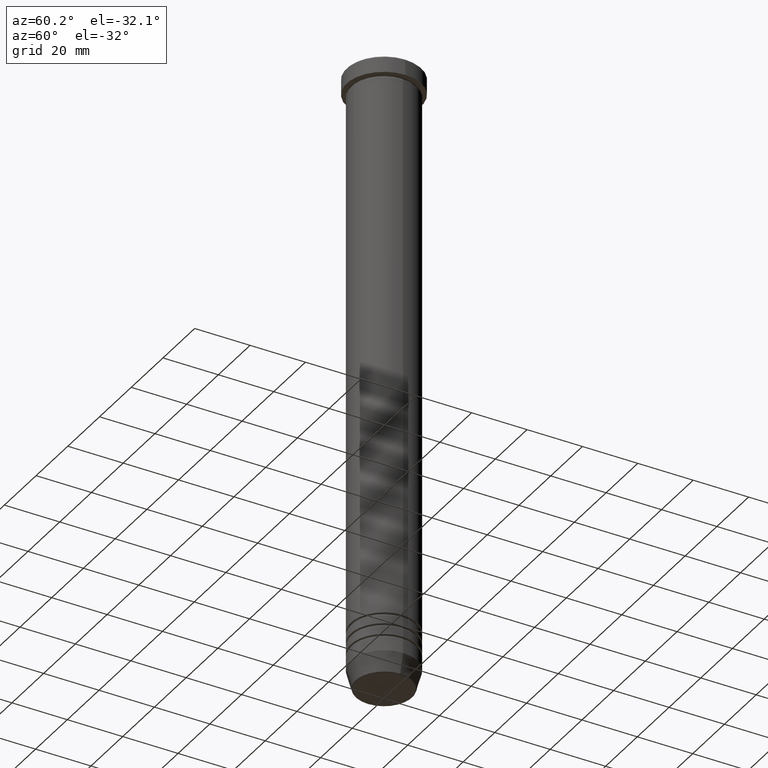
[diagram: clean part render]
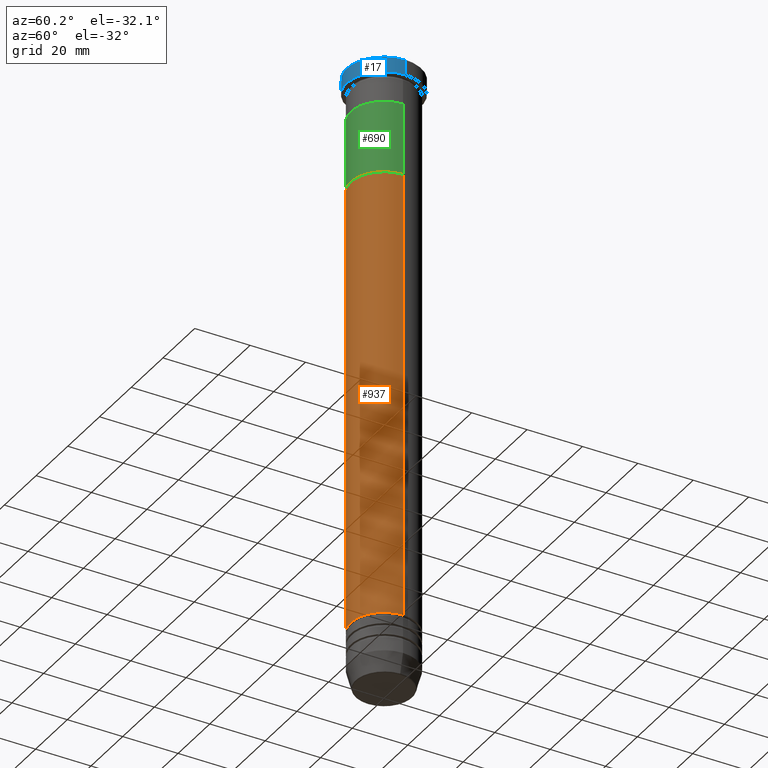
[diagram: same view with three faces highlighted in distinct colors, each labeled with its STEP entity id]
A machine part, auxiliary view with three faces highlighted in distinct colors.
Their STEP definitions:

[orange] entity #937 — the highlighted cylindrical surface (partial cylindrical patch) has radius 12 mm, axis along (-0, -0, 1).
#29 = CARTESIAN_POINT ( 'NONE',  ( -12.00000000000000178, 1.469576158976824144E-15, -41.99999999999999289 ) ) ;
#83 = AXIS2_PLACEMENT_3D ( 'NONE', #355, #528, #96 ) ;
#96 = DIRECTION ( 'NONE',  ( 1.000000000000000000, 0.000000000000000000, 0.000000000000000000 ) ) ;
#104 = EDGE_CURVE ( 'NONE', #334, #419, #735, .T. ) ;
#125 = CIRCLE ( 'NONE', #228, 12.00000000000000178 ) ;
#163 = DIRECTION ( 'NONE',  ( -0.000000000000000000, -0.000000000000000000, 1.000000000000000000 ) ) ;
#228 = AXIS2_PLACEMENT_3D ( 'NONE', #850, #951, #1143 ) ;
#237 = DIRECTION ( 'NONE',  ( 1.000000000000000000, 0.000000000000000000, 0.000000000000000000 ) ) ;
#309 = CARTESIAN_POINT ( 'NONE',  ( 11.99999999999999822, 0.000000000000000000, 0.000000000000000000 ) ) ;
#320 = LINE ( 'NONE', #1045, #748 ) ;
#324 = ORIENTED_EDGE ( 'NONE', *, *, #1068, .F. ) ;
#334 = VERTEX_POINT ( 'NONE', #791 ) ;
#345 = CARTESIAN_POINT ( 'NONE',  ( -11.99999999999999467, 1.469576158976823553E-15, -205.0000000000000000 ) ) ;
#355 = CARTESIAN_POINT ( 'NONE',  ( 0.000000000000000000, 0.000000000000000000, -205.0000000000000000 ) ) ;
#411 = CARTESIAN_POINT ( 'NONE',  ( 0.000000000000000000, 0.000000000000000000, 0.000000000000000000 ) ) ;
#419 = VERTEX_POINT ( 'NONE', #1112 ) ;
#445 = ORIENTED_EDGE ( 'NONE', *, *, #804, .T. ) ;
#515 = FACE_OUTER_BOUND ( 'NONE', #1142, .T. ) ;
#528 = DIRECTION ( 'NONE',  ( -0.000000000000000000, -0.000000000000000000, 1.000000000000000000 ) ) ;
#587 = ORIENTED_EDGE ( 'NONE', *, *, #104, .T. ) ;
#710 = VECTOR ( 'NONE', #1093, 1000.000000000000000 ) ;
#727 = VERTEX_POINT ( 'NONE', #29 ) ;
#735 = LINE ( 'NONE', #309, #710 ) ;
#748 = VECTOR ( 'NONE', #163, 1000.000000000000000 ) ;
#777 = DIRECTION ( 'NONE',  ( -0.000000000000000000, -0.000000000000000000, 1.000000000000000000 ) ) ;
#791 = CARTESIAN_POINT ( 'NONE',  ( 11.99999999999999467, 0.000000000000000000, -205.0000000000000000 ) ) ;
#795 = ORIENTED_EDGE ( 'NONE', *, *, #898, .F. ) ;
#804 = EDGE_CURVE ( 'NONE', #879, #334, #989, .T. ) ;
#850 = CARTESIAN_POINT ( 'NONE',  ( 0.000000000000000000, 0.000000000000000000, -41.99999999999999289 ) ) ;
#879 = VERTEX_POINT ( 'NONE', #345 ) ;
#898 = EDGE_CURVE ( 'NONE', #879, #727, #320, .T. ) ;
#937 = ADVANCED_FACE ( 'NONE', ( #515 ), #1044, .T. ) ;
#951 = DIRECTION ( 'NONE',  ( -0.000000000000000000, -0.000000000000000000, 1.000000000000000000 ) ) ;
#989 = CIRCLE ( 'NONE', #83, 11.99999999999999467 ) ;
#1001 = AXIS2_PLACEMENT_3D ( 'NONE', #411, #777, #237 ) ;
#1044 = CYLINDRICAL_SURFACE ( 'NONE', #1001, 11.99999999999999822 ) ;
#1045 = CARTESIAN_POINT ( 'NONE',  ( -11.99999999999999822, 1.469576158976823750E-15, 0.000000000000000000 ) ) ;
#1068 = EDGE_CURVE ( 'NONE', #727, #419, #125, .T. ) ;
#1093 = DIRECTION ( 'NONE',  ( -0.000000000000000000, -0.000000000000000000, 1.000000000000000000 ) ) ;
#1112 = CARTESIAN_POINT ( 'NONE',  ( 12.00000000000000178, 0.000000000000000000, -41.99999999999999289 ) ) ;
#1142 = EDGE_LOOP ( 'NONE', ( #795, #445, #587, #324 ) ) ;
#1143 = DIRECTION ( 'NONE',  ( 1.000000000000000000, 0.000000000000000000, 0.000000000000000000 ) ) ;

[blue] entity #17 — the highlighted cylindrical surface (partial cylindrical patch) has radius 13.5 mm, axis along (-0, -0, 1).
#3 = VERTEX_POINT ( 'NONE', #540 ) ;
#12 = AXIS2_PLACEMENT_3D ( 'NONE', #942, #597, #319 ) ;
#16 = CARTESIAN_POINT ( 'NONE',  ( 13.50000000000000000, 0.000000000000000000, -0.5000000000000056621 ) ) ;
#17 = ADVANCED_FACE ( 'NONE', ( #356 ), #189, .T. ) ;
#98 = DIRECTION ( 'NONE',  ( 1.000000000000000000, 0.000000000000000000, 0.000000000000000000 ) ) ;
#150 = DIRECTION ( 'NONE',  ( 1.000000000000000000, 0.000000000000000000, 0.000000000000000000 ) ) ;
#189 = CYLINDRICAL_SURFACE ( 'NONE', #462, 13.50000000000000000 ) ;
#222 = VERTEX_POINT ( 'NONE', #545 ) ;
#264 = DIRECTION ( 'NONE',  ( -0.000000000000000000, -0.000000000000000000, 1.000000000000000000 ) ) ;
#279 = DIRECTION ( 'NONE',  ( -0.000000000000000000, -0.000000000000000000, 1.000000000000000000 ) ) ;
#283 = VERTEX_POINT ( 'NONE', #16 ) ;
#298 = CARTESIAN_POINT ( 'NONE',  ( -13.50000000000000000, 1.653273178848926867E-15, -6.000000000000000000 ) ) ;
#319 = DIRECTION ( 'NONE',  ( 1.000000000000000000, 0.000000000000000000, 0.000000000000000000 ) ) ;
#354 = DIRECTION ( 'NONE',  ( -0.000000000000000000, -0.000000000000000000, 1.000000000000000000 ) ) ;
#356 = FACE_OUTER_BOUND ( 'NONE', #689, .T. ) ;
#364 = EDGE_CURVE ( 'NONE', #410, #222, #1082, .T. ) ;
#386 = CIRCLE ( 'NONE', #12, 13.50000000000000000 ) ;
#410 = VERTEX_POINT ( 'NONE', #298 ) ;
#448 = AXIS2_PLACEMENT_3D ( 'NONE', #672, #581, #150 ) ;
#462 = AXIS2_PLACEMENT_3D ( 'NONE', #1083, #354, #98 ) ;
#520 = LINE ( 'NONE', #955, #1024 ) ;
#540 = CARTESIAN_POINT ( 'NONE',  ( 13.50000000000000000, 0.000000000000000000, -6.000000000000000000 ) ) ;
#543 = CARTESIAN_POINT ( 'NONE',  ( -13.50000000000000000, 1.653273178848926867E-15, 0.000000000000000000 ) ) ;
#545 = CARTESIAN_POINT ( 'NONE',  ( -13.50000000000000000, 1.653273178848926867E-15, -0.5000000000000056621 ) ) ;
#581 = DIRECTION ( 'NONE',  ( -0.000000000000000000, -0.000000000000000000, 1.000000000000000000 ) ) ;
#597 = DIRECTION ( 'NONE',  ( 0.000000000000000000, 0.000000000000000000, -1.000000000000000000 ) ) ;
#620 = EDGE_CURVE ( 'NONE', #410, #3, #870, .T. ) ;
#672 = CARTESIAN_POINT ( 'NONE',  ( 0.000000000000000000, 0.000000000000000000, -6.000000000000000000 ) ) ;
#689 = EDGE_LOOP ( 'NONE', ( #1106, #954, #760, #997 ) ) ;
#701 = EDGE_CURVE ( 'NONE', #3, #283, #520, .T. ) ;
#760 = ORIENTED_EDGE ( 'NONE', *, *, #701, .T. ) ;
#785 = VECTOR ( 'NONE', #279, 1000.000000000000000 ) ;
#870 = CIRCLE ( 'NONE', #448, 13.50000000000000000 ) ;
#942 = CARTESIAN_POINT ( 'NONE',  ( 0.000000000000000000, 0.000000000000000000, -0.5000000000000056621 ) ) ;
#954 = ORIENTED_EDGE ( 'NONE', *, *, #620, .T. ) ;
#955 = CARTESIAN_POINT ( 'NONE',  ( 13.50000000000000000, 0.000000000000000000, 0.000000000000000000 ) ) ;
#967 = EDGE_CURVE ( 'NONE', #283, #222, #386, .T. ) ;
#997 = ORIENTED_EDGE ( 'NONE', *, *, #967, .T. ) ;
#1024 = VECTOR ( 'NONE', #264, 1000.000000000000000 ) ;
#1082 = LINE ( 'NONE', #543, #785 ) ;
#1083 = CARTESIAN_POINT ( 'NONE',  ( 0.000000000000000000, 0.000000000000000000, 0.000000000000000000 ) ) ;
#1106 = ORIENTED_EDGE ( 'NONE', *, *, #364, .F. ) ;

[green] entity #690 — the highlighted cylindrical surface (partial cylindrical patch) has radius 12 mm, axis along (-0, -0, 1).
#80 = CARTESIAN_POINT ( 'NONE',  ( 0.000000000000000000, 0.000000000000000000, -41.99999999999999289 ) ) ;
#91 = ORIENTED_EDGE ( 'NONE', *, *, #305, .F. ) ;
#97 = CARTESIAN_POINT ( 'NONE',  ( -12.00000000000000178, 1.469576158976823947E-15, -41.99999999999999289 ) ) ;
#143 = EDGE_CURVE ( 'NONE', #1132, #806, #971, .T. ) ;
#187 = CARTESIAN_POINT ( 'NONE',  ( -12.00000000000000178, 1.469576158976823947E-15, -16.00000000000000000 ) ) ;
#216 = CIRCLE ( 'NONE', #871, 12.00000000000000178 ) ;
#274 = AXIS2_PLACEMENT_3D ( 'NONE', #80, #763, #592 ) ;
#305 = EDGE_CURVE ( 'NONE', #806, #414, #539, .T. ) ;
#307 = VECTOR ( 'NONE', #457, 1000.000000000000000 ) ;
#311 = FACE_OUTER_BOUND ( 'NONE', #315, .T. ) ;
#315 = EDGE_LOOP ( 'NONE', ( #91, #607, #554, #591 ) ) ;
#362 = DIRECTION ( 'NONE',  ( 0.000000000000000000, 0.000000000000000000, -1.000000000000000000 ) ) ;
#378 = EDGE_CURVE ( 'NONE', #1132, #964, #704, .T. ) ;
#407 = DIRECTION ( 'NONE',  ( -1.000000000000000000, 0.000000000000000000, 0.000000000000000000 ) ) ;
#414 = VERTEX_POINT ( 'NONE', #187 ) ;
#457 = DIRECTION ( 'NONE',  ( -0.000000000000000000, -0.000000000000000000, 1.000000000000000000 ) ) ;
#465 = DIRECTION ( 'NONE',  ( -1.000000000000000000, 0.000000000000000000, 0.000000000000000000 ) ) ;
#474 = CARTESIAN_POINT ( 'NONE',  ( -12.00000000000000178, 1.469576158976823947E-15, -41.99999999999999289 ) ) ;
#514 = AXIS2_PLACEMENT_3D ( 'NONE', #556, #812, #407 ) ;
#521 = CARTESIAN_POINT ( 'NONE',  ( 0.000000000000000000, 0.000000000000000000, -16.00000000000000000 ) ) ;
#539 = LINE ( 'NONE', #97, #987 ) ;
#554 = ORIENTED_EDGE ( 'NONE', *, *, #378, .T. ) ;
#556 = CARTESIAN_POINT ( 'NONE',  ( 0.000000000000000000, 0.000000000000000000, -41.99999999999999289 ) ) ;
#591 = ORIENTED_EDGE ( 'NONE', *, *, #816, .T. ) ;
#592 = DIRECTION ( 'NONE',  ( 1.000000000000000000, 0.000000000000000000, 0.000000000000000000 ) ) ;
#607 = ORIENTED_EDGE ( 'NONE', *, *, #143, .F. ) ;
#662 = CARTESIAN_POINT ( 'NONE',  ( 12.00000000000000178, 0.000000000000000000, -41.99999999999999289 ) ) ;
#690 = ADVANCED_FACE ( 'NONE', ( #311 ), #843, .T. ) ;
#702 = DIRECTION ( 'NONE',  ( -0.000000000000000000, -0.000000000000000000, 1.000000000000000000 ) ) ;
#704 = LINE ( 'NONE', #939, #307 ) ;
#763 = DIRECTION ( 'NONE',  ( -0.000000000000000000, -0.000000000000000000, 1.000000000000000000 ) ) ;
#806 = VERTEX_POINT ( 'NONE', #474 ) ;
#812 = DIRECTION ( 'NONE',  ( 0.000000000000000000, 0.000000000000000000, -1.000000000000000000 ) ) ;
#816 = EDGE_CURVE ( 'NONE', #964, #414, #216, .T. ) ;
#843 = CYLINDRICAL_SURFACE ( 'NONE', #274, 12.00000000000000178 ) ;
#871 = AXIS2_PLACEMENT_3D ( 'NONE', #521, #362, #465 ) ;
#939 = CARTESIAN_POINT ( 'NONE',  ( 12.00000000000000178, 0.000000000000000000, -41.99999999999999289 ) ) ;
#964 = VERTEX_POINT ( 'NONE', #1059 ) ;
#971 = CIRCLE ( 'NONE', #514, 12.00000000000000178 ) ;
#987 = VECTOR ( 'NONE', #702, 1000.000000000000000 ) ;
#1059 = CARTESIAN_POINT ( 'NONE',  ( 12.00000000000000178, 0.000000000000000000, -16.00000000000000000 ) ) ;
#1132 = VERTEX_POINT ( 'NONE', #662 ) ;